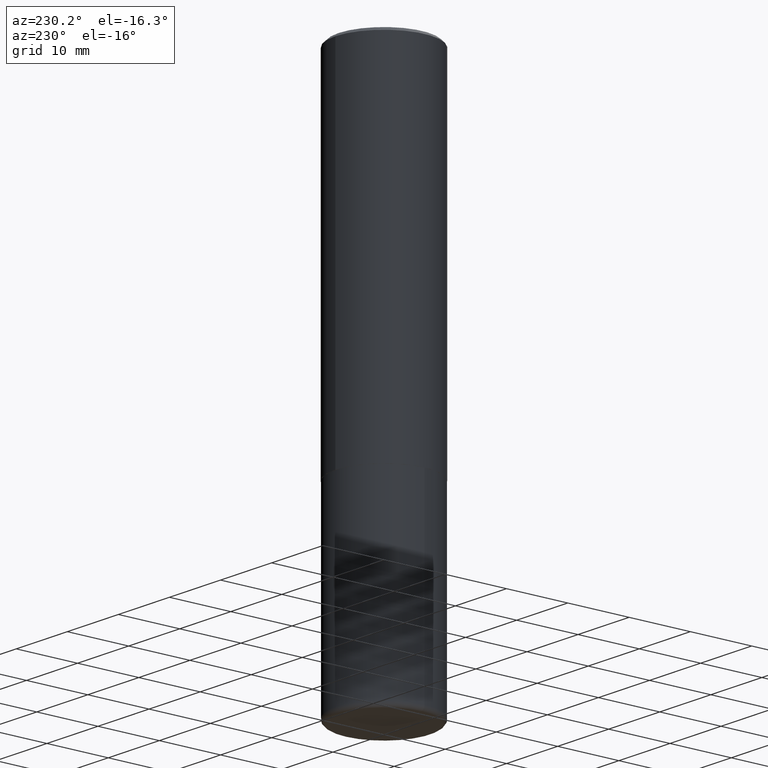
[diagram: clean part render]
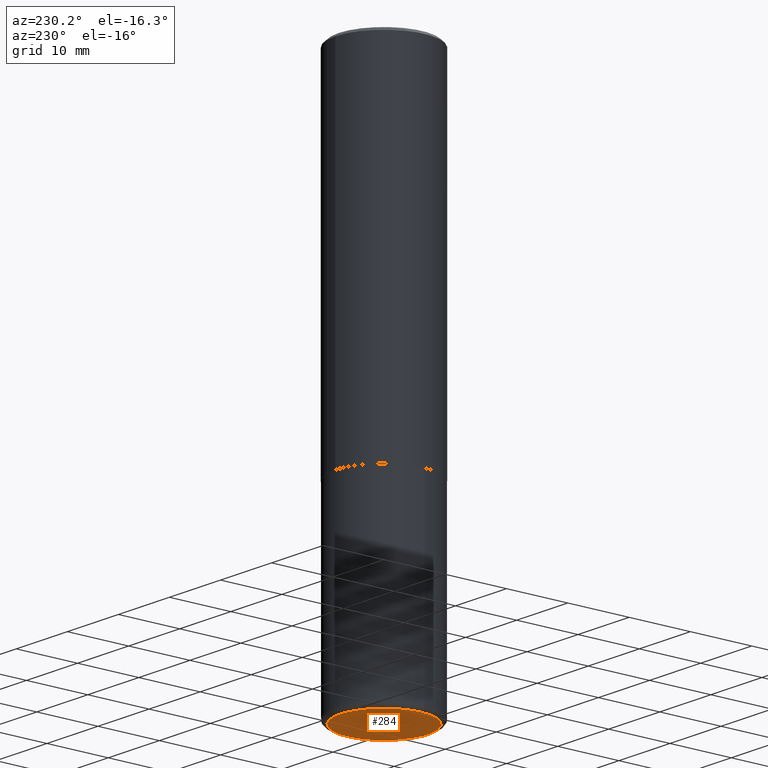
[diagram: same view with one face highlighted and labeled with its STEP entity id]
A machine part, auxiliary view. The second image highlights one B-rep face of the part: STEP entity #284.
In plain terms, the highlighted planar face has unit normal (0, -0, -1).
Its self-contained STEP definition (entity closure, byte-faithful):
#34 = DIRECTION ( 'NONE',  ( 2.438088387897960049E-29, -3.491481338843145188E-15, -1.000000000000000000 ) ) ;
#51 = AXIS2_PLACEMENT_3D ( 'NONE', #393, #34, #104 ) ;
#55 = DIRECTION ( 'NONE',  ( 1.000000000000000000, -6.982962677686270655E-15, 0.000000000000000000 ) ) ;
#71 = CARTESIAN_POINT ( 'NONE',  ( 0.2824999999999999734, -1.419287164239738095E-14, -3.500000000000000444 ) ) ;
#88 = DIRECTION ( 'NONE',  ( -2.445468806185136597E-29, 3.491481338843145583E-15, 1.000000000000000000 ) ) ;
#93 = CARTESIAN_POINT ( 'NONE',  ( -0.2824999999999999734, -1.005394782698206391E-14, -3.500000000000000444 ) ) ;
#104 = DIRECTION ( 'NONE',  ( -1.000000000000000000, 6.982962677686265922E-15, -4.876176775795935793E-29 ) ) ;
#105 = ORIENTED_EDGE ( 'NONE', *, *, #182, .F. ) ;
#132 = AXIS2_PLACEMENT_3D ( 'NONE', #263, #88, #55 ) ;
#158 = CARTESIAN_POINT ( 'NONE',  ( 8.559140821647978089E-29, -1.222018468595101092E-14, -3.500000000000000444 ) ) ;
#172 = CIRCLE ( 'NONE', #411, 0.2824999999999999734 ) ;
#182 = EDGE_CURVE ( 'NONE', #321, #246, #347, .T. ) ;
#203 = ORIENTED_EDGE ( 'NONE', *, *, #210, .F. ) ;
#210 = EDGE_CURVE ( 'NONE', #246, #321, #172, .T. ) ;
#246 = VERTEX_POINT ( 'NONE', #93 ) ;
#248 = EDGE_LOOP ( 'NONE', ( #105, #203 ) ) ;
#263 = CARTESIAN_POINT ( 'NONE',  ( 8.559140821647978089E-29, -1.222018468595101092E-14, -3.500000000000000444 ) ) ;
#284 = ADVANCED_FACE ( 'NONE', ( #315 ), #325, .T. ) ;
#315 = FACE_OUTER_BOUND ( 'NONE', #248, .T. ) ;
#321 = VERTEX_POINT ( 'NONE', #71 ) ;
#325 = PLANE ( 'NONE',  #51 ) ;
#346 = DIRECTION ( 'NONE',  ( -2.445468806185136597E-29, 3.491481338843145583E-15, 1.000000000000000000 ) ) ;
#347 = CIRCLE ( 'NONE', #132, 0.2824999999999999734 ) ;
#393 = CARTESIAN_POINT ( 'NONE',  ( 3.832247084795318978E-29, -1.898936555520759464E-14, -3.500000000000000444 ) ) ;
#411 = AXIS2_PLACEMENT_3D ( 'NONE', #158, #346, #412 ) ;
#412 = DIRECTION ( 'NONE',  ( 1.000000000000000000, -6.982962677686270655E-15, 0.000000000000000000 ) ) ;